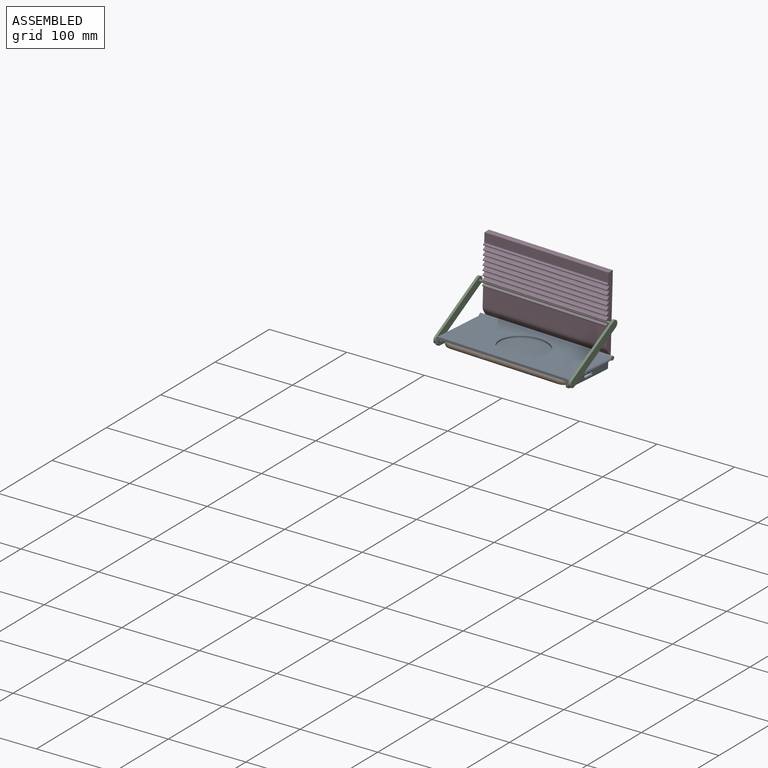
[diagram: assembled view]
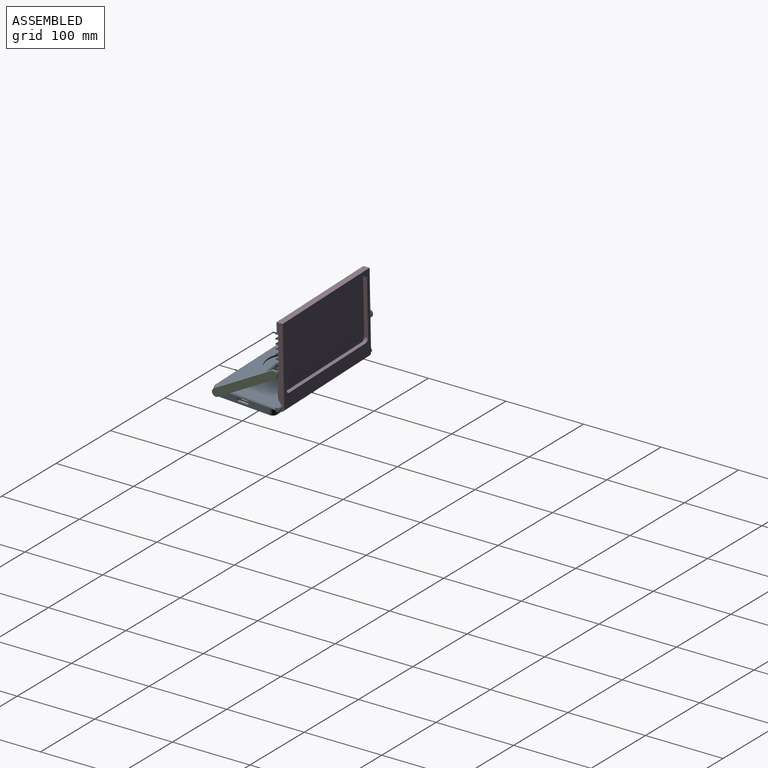
[diagram: assembled view, second angle]
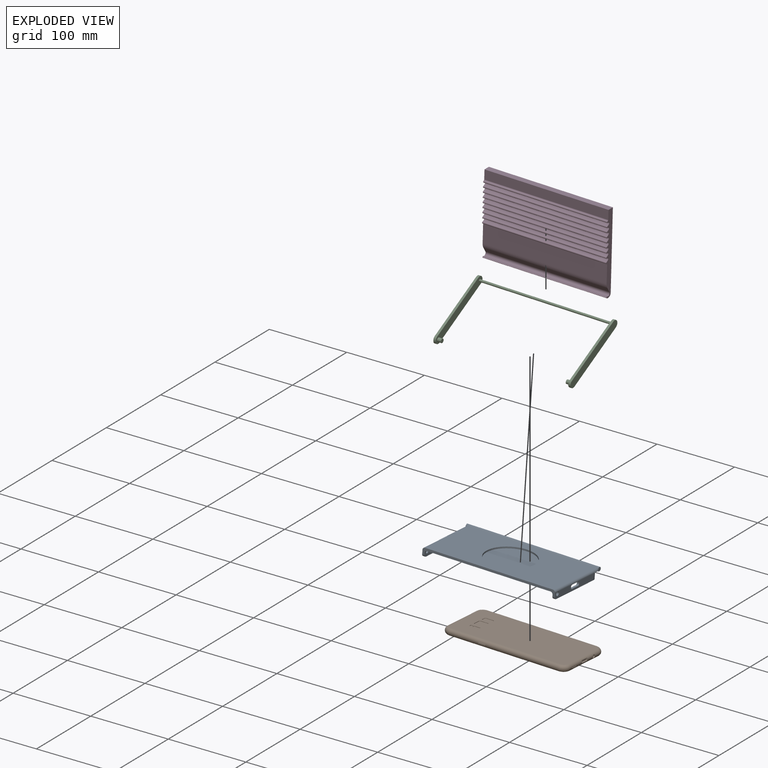
[diagram: exploded view]
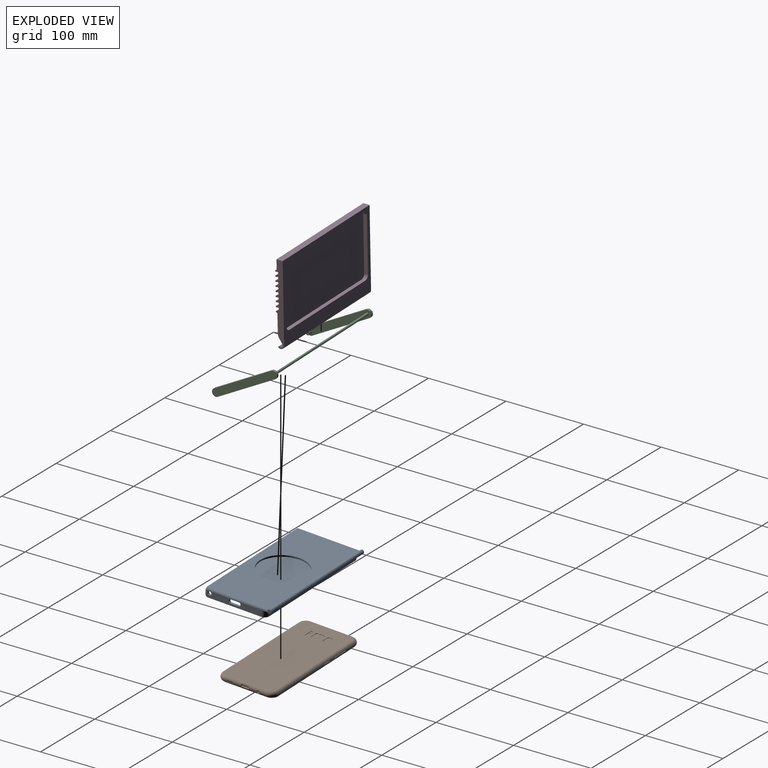
[diagram: exploded view, second angle]
ASSEMBLY  parts=4 mates=5
PART A: 41 faces, bbox 171x12x84.5 mm
  f0: plane 72x8mm, normal (1,0,0), area 482.9mm2, adj f7,f13,f20,f25,f26,f27,f28,f29
  f1: plane 72x8mm, normal (-1,0,0), area 554.4mm2, adj f7,f13,f19,f33,f37,f38
  f2: cylinder r=3mm len=67mm, axis (0,0,1), area 266mm2, adj f4,f6,f24,f28,f29,f30,f31,f32
  f3: cylinder r=3mm len=5mm, axis (0,0,1), area 15.7mm2, adj f6,f7,f15,f33
  f4: plane 72x5mm, normal (-1,0,0), area 315mm2, adj f2,f5,f7,f13,f18,f25,f26,f27
  f5: cylinder r=3mm len=5mm, axis (0,0,1), area 15.7mm2, adj f4,f6,f7,f34
  f6: plane 159x72mm, normal (0,-1,0), area 11448mm2, adj f2,f3,f5,f7,f21,f23
  f7: plane 171x8mm, normal (0,0,1), area 543mm2, adj f0,f1,f3,f4,f5,f6,f9,f15
  f8: plane 171x8mm, normal (0,-1,0), area 357.5mm2, adj f10,f12,f19,f20,f38,f40
  f9: plane 165x80mm, normal (0,1,0), area 10372.6mm2, adj f7,f10,f35,f38,f40
  f10: cylinder r=2.5mm len=171mm, axis (-1,0,0), area 2140.1mm2, adj f8,f9,f14,f16,f38,f40
  f11: plane 159x5mm, normal (0,0,1), area 795mm2, adj f13,f17,f18,f23
  f12: plane 159x8mm, normal (0,0,-1), area 1272mm2, adj f8,f13,f19,f20
  f13: plane 171x75mm, normal (0,-1,0), area 933.4mm2, adj f0,f1,f4,f11,f12,f15,f17,f18
  f14: plane 5x5mm, normal (1,0,0), area 19.6mm2, adj f10
  f15: plane 72x5mm, normal (1,0,0), area 350.7mm2, adj f3,f7,f13,f17,f21,f33,f37
  f16: plane 5x5mm, normal (-1,0,0), area 19.6mm2, adj f10
  f17: cylinder r=3mm len=5mm, axis (0,1,0), area 23.6mm2, adj f11,f13,f15,f22
  f18: cylinder r=3mm len=5mm, axis (0,1,0), area 23.6mm2, adj f4,f11,f13,f24
  f19: cylinder r=6mm len=8mm, axis (0,-1,0), area 75.4mm2, adj f1,f8,f12,f13
  f20: cylinder r=6mm len=8mm, axis (0,-1,0), area 75.4mm2, adj f0,f8,f12,f13
  f21: cylinder r=3mm len=67mm, axis (0,0,1), area 307.8mm2, adj f6,f15,f22,f33
  f22: sphere r=3mm, area 14.1mm2, adj f17,f21,f23
  f23: cylinder r=3mm len=159mm, axis (-1,0,0), area 749.3mm2, adj f6,f11,f22,f24
  f24: sphere r=3mm, area 14.1mm2, adj f2,f18,f23
  f25: cylinder r=2mm len=3mm, axis (1,0,0), area 9.4mm2, adj f0,f4,f26,f30
  f26: plane 11x3mm, normal (0,1,0), area 33mm2, adj f0,f4,f25,f27
  f27: cylinder r=2mm len=3mm, axis (1,0,0), area 9.4mm2, adj f0,f4,f26,f31
  f28: plane 11x4.34mm, normal (0,-1,0), area 47.8mm2, adj f0,f2,f29,f32
  f29: cylinder r=2mm len=4.34mm, axis (1,0,0), area 11.6mm2, adj f0,f2,f28,f30
  f30: plane 3.04x1mm, normal (0,0,-1), area 3mm2, adj f0,f2,f4,f25,f29
  f31: plane 3.04x1mm, normal (0,0,1), area 3mm2, adj f0,f2,f4,f27,f32
  f32: cylinder r=2mm len=4.34mm, axis (1,0,0), area 11.6mm2, adj f0,f2,f28,f31
  f33: cylinder r=2.5mm len=6mm, axis (1,0,0), area 56.6mm2, adj f1,f3,f15,f21
  f34: cylinder r=2.5mm len=6mm, axis (1,0,0), area 56.6mm2, adj f0,f2,f4,f5
  f35: cylinder r=30mm len=60mm, axis (0,1,0), area 377mm2, adj f9,f36
  f36: plane 60x60mm, normal (0,1,0), area 2827.4mm2, adj f35
  f37: cylinder r=3mm len=3mm, axis (-1,0,0), area 14.1mm2, adj f1,f7,f13,f15
  f38: cylinder r=3mm len=80mm, axis (0,0,-1), area 375.7mm2, adj f1,f7,f8,f9,f10
  f39: cylinder r=3mm len=3mm, axis (1,0,0), area 14.1mm2, adj f0,f4,f7,f13
  f40: cylinder r=3mm len=80mm, axis (0,0,-1), area 375.7mm2, adj f0,f7,f8,f9,f10
PART B: 134 faces, bbox 75.3x161.6x8 mm
  f0: plane 152x65.5mm, normal (0,0,-1), area 9913.4mm2, adj f1,f2,f4,f5,f6,f7,f8,f9
  f1: cylinder r=4mm len=53.5mm, axis (-1,0,0), area 617mm2, adj f0,f3,f6,f9,f73,f74,f75,f76
  f2: cylinder r=4mm len=140mm, axis (0,1,0), area 1745.2mm2, adj f0,f3,f8,f9,f46,f47,f48,f49
  f3: plane 152x65.5mm, normal (0,0,1), area 9671.4mm2, adj f1,f2,f4,f5,f6,f7,f8,f9
  f4: cylinder r=4mm len=140mm, axis (0,-1,0), area 1712.9mm2, adj f0,f3,f5,f6,f55,f56,f57,f58
  f5: torus R=6mm, axis (0,0,1), area 168.7mm2, adj f0,f3,f4,f7
  f6: torus R=6mm, axis (0,0,1), area 168.7mm2, adj f0,f1,f3,f4
  f7: cylinder r=4mm len=53.5mm, axis (1,0,0), area 672.3mm2, adj f0,f3,f5,f8
  f8: torus R=6mm, axis (0,0,1), area 168.7mm2, adj f0,f2,f3,f7
  f9: torus R=6mm, axis (0,0,1), area 168.7mm2, adj f0,f1,f2,f3
  f10: plane 7x0.5mm, normal (-1,0,0), area 3.5mm2, adj f3,f11,f17,f18
  f11: cylinder r=0.5mm len=0.5mm, axis (0,0,1), area 0.4mm2, adj f3,f10,f12,f18
  f12: plane 2x0.5mm, normal (0,-1,0), area 1mm2, adj f3,f11,f13,f18
  f13: cylinder r=0.5mm len=0.5mm, axis (0,0,1), area 0.4mm2, adj f3,f12,f14,f18
  f14: plane 7x0.5mm, normal (1,0,0), area 3.5mm2, adj f3,f13,f15,f18
  f15: cylinder r=0.5mm len=0.5mm, axis (0,0,1), area 0.4mm2, adj f3,f14,f16,f18
  f16: plane 2x0.5mm, normal (0,1,0), area 1mm2, adj f3,f15,f17,f18
  f17: cylinder r=0.5mm len=0.5mm, axis (0,0,1), area 0.4mm2, adj f3,f10,f16,f18
  f18: plane 8x3mm, normal (0,0,1), area 23.8mm2, adj f10,f11,f12,f13,f14,f15,f16,f17
  f19: plane 8x0.5mm, normal (-1,0,0), area 4mm2, adj f3,f20,f26,f27
  f20: cylinder r=2mm len=2mm, axis (0,0,1), area 1.6mm2, adj f3,f19,f21,f27
  f21: plane 8x0.5mm, normal (0,-1,0), area 4mm2, adj f3,f20,f22,f27
  f22: cylinder r=2mm len=2mm, axis (0,0,1), area 1.6mm2, adj f3,f21,f23,f27
  f23: plane 8x0.5mm, normal (1,0,0), area 4mm2, adj f3,f22,f24,f27
  f24: cylinder r=2mm len=2mm, axis (0,0,1), area 1.6mm2, adj f3,f23,f25,f27
  f25: plane 8x0.5mm, normal (0,1,0), area 4mm2, adj f3,f24,f26,f27
  f26: cylinder r=2mm len=2mm, axis (0,0,1), area 1.6mm2, adj f3,f19,f25,f27
  f27: plane 12x12mm, normal (0,0,1), area 140.6mm2, adj f19,f20,f21,f22,f23,f24,f25,f26
  f28: cylinder r=0.5mm len=0.5mm, axis (0,0,1), area 0.4mm2, adj f3,f29,f35,f36
  f29: plane 2x0.5mm, normal (-1,0,0), area 1mm2, adj f3,f28,f30,f36
  f30: cylinder r=0.5mm len=0.5mm, axis (0,0,1), area 0.4mm2, adj f3,f29,f31,f36
  f31: plane 2x0.5mm, normal (0,-1,0), area 1mm2, adj f3,f30,f32,f36
  f32: cylinder r=0.5mm len=0.5mm, axis (0,0,1), area 0.4mm2, adj f3,f31,f33,f36
  f33: plane 2x0.5mm, normal (1,0,0), area 1mm2, adj f3,f32,f34,f36
  f34: cylinder r=0.5mm len=0.5mm, axis (0,0,1), area 0.4mm2, adj f3,f33,f35,f36
  f35: plane 2x0.5mm, normal (0,1,0), area 1mm2, adj f3,f28,f34,f36
  f36: plane 3x3mm, normal (0,0,1), area 8.8mm2, adj f28,f29,f30,f31,f32,f33,f34,f35
  f37: cylinder r=2mm len=2mm, axis (0,0,1), area 1.6mm2, adj f3,f38,f44,f45
  f38: plane 3x0.5mm, normal (0,-1,0), area 1.5mm2, adj f3,f37,f39,f45
  f39: cylinder r=2mm len=2mm, axis (0,0,1), area 1.6mm2, adj f3,f38,f40,f45
  f40: plane 8x0.5mm, normal (1,0,0), area 4mm2, adj f3,f39,f41,f45
  f41: cylinder r=2mm len=2mm, axis (0,0,1), area 1.6mm2, adj f3,f40,f42,f45
  f42: plane 3x0.5mm, normal (0,1,0), area 1.5mm2, adj f3,f41,f43,f45
  f43: cylinder r=2mm len=2mm, axis (0,0,1), area 1.6mm2, adj f3,f42,f44,f45
  f44: plane 8x0.5mm, normal (-1,0,0), area 4mm2, adj f3,f37,f43,f45
  f45: plane 12x7mm, normal (0,0,1), area 80.6mm2, adj f37,f38,f39,f40,f41,f42,f43,f44
  f46: plane 1.01x0.5mm, normal (0,-1,0), area 0.5mm2, adj f2,f47,f53,f54
  f47: cylinder r=0.5mm len=1.07mm, axis (-1,0,0), area 0.8mm2, adj f2,f46,f48,f54
  f48: plane 8.5x1.07mm, normal (0,0,-1), area 9.1mm2, adj f2,f47,f49,f54
  f49: cylinder r=0.5mm len=1.07mm, axis (-1,0,0), area 0.8mm2, adj f2,f48,f50,f54
  f50: plane 1.01x0.5mm, normal (0,1,0), area 0.5mm2, adj f2,f49,f51,f54
  f51: cylinder r=0.5mm len=1.07mm, axis (-1,0,0), area 0.8mm2, adj f2,f50,f52,f54
  f52: plane 8.5x1.07mm, normal (0,0,1), area 9.1mm2, adj f2,f51,f53,f54
  f53: cylinder r=0.5mm len=1.07mm, axis (-1,0,0), area 0.8mm2, adj f2,f46,f52,f54
  f54: plane 9.5x1.5mm, normal (-1,0,0), area 14mm2, adj f46,f47,f48,f49,f50,f51,f52,f53
  f55: plane 9x0.57mm, normal (0,0,-1), area 5.1mm2, adj f4,f56,f62,f63
  f56: cylinder r=0.5mm len=0.57mm, axis (1,0,0), area 0.4mm2, adj f4,f55,f57,f63
  f57: plane 0.51x0.5mm, normal (0,1,0), area 0.3mm2, adj f4,f56,f58,f63
  f58: cylinder r=0.5mm len=0.57mm, axis (1,0,0), area 0.4mm2, adj f4,f57,f59,f63
  f59: plane 9x0.57mm, normal (0,0,1), area 5.1mm2, adj f4,f58,f60,f63
  f60: cylinder r=0.5mm len=0.57mm, axis (1,0,0), area 0.4mm2, adj f4,f59,f61,f63
  f61: plane 0.51x0.5mm, normal (0,-1,0), area 0.3mm2, adj f4,f60,f62,f63
  f62: cylinder r=0.5mm len=0.57mm, axis (1,0,0), area 0.4mm2, adj f4,f55,f61,f63
  f63: plane 10x1.5mm, normal (1,0,0), area 14.8mm2, adj f55,f56,f57,f58,f59,f60,f61,f62
  f64: plane 20x0.57mm, normal (0,0,-1), area 11.4mm2, adj f4,f65,f71,f72
  f65: cylinder r=0.5mm len=0.57mm, axis (1,0,0), area 0.4mm2, adj f4,f64,f66,f72
  f66: plane 0.51x0.5mm, normal (0,1,0), area 0.3mm2, adj f4,f65,f67,f72
  f67: cylinder r=0.5mm len=0.57mm, axis (1,0,0), area 0.4mm2, adj f4,f66,f68,f72
  f68: plane 20x0.57mm, normal (0,0,1), area 11.4mm2, adj f4,f67,f69,f72
  f69: cylinder r=0.5mm len=0.57mm, axis (1,0,0), area 0.4mm2, adj f4,f68,f70,f72
  f70: plane 0.51x0.5mm, normal (0,-1,0), area 0.3mm2, adj f4,f69,f71,f72
  f71: cylinder r=0.5mm len=0.57mm, axis (1,0,0), area 0.4mm2, adj f4,f64,f70,f72
  f72: plane 21x1.5mm, normal (1,0,0), area 31.3mm2, adj f64,f65,f66,f67,f68,f69,f70,f71
  f73: cylinder r=0.25mm len=1.93mm, axis (0,-1,0), area 0.7mm2, adj f1,f74,f80,f81
  f74: plane 1.87x0.5mm, normal (0,0,1), area 0.9mm2, adj f1,f73,f75,f81
  f75: cylinder r=0.25mm len=1.93mm, axis (0,-1,0), area 0.7mm2, adj f1,f74,f76,f81
  f76: plane 2x1.75mm, normal (-1,0,0), area 3.4mm2, adj f1,f75,f77,f81
  f77: cylinder r=0.25mm len=1.87mm, axis (0,-1,0), area 0.7mm2, adj f1,f76,f78,f81
  f78: plane 1.8x0.5mm, normal (0,0,-1), area 0.9mm2, adj f1,f77,f79,f81
  f79: cylinder r=0.25mm len=1.87mm, axis (0,-1,0), area 0.7mm2, adj f1,f78,f80,f81
  f80: plane 2x1.75mm, normal (1,0,0), area 3.4mm2, adj f1,f73,f79,f81
  f81: plane 2.25x1mm, normal (0,-1,0), area 2.2mm2, adj f73,f74,f75,f76,f77,f78,f79,f80
  f82: cylinder r=0.25mm len=1.93mm, axis (0,-1,0), area 0.7mm2, adj f1,f83,f89,f90
  f83: plane 1.87x0.5mm, normal (0,0,1), area 0.9mm2, adj f1,f82,f84,f90
  f84: cylinder r=0.25mm len=1.93mm, axis (0,-1,0), area 0.7mm2, adj f1,f83,f85,f90
  f85: plane 2x1.75mm, normal (-1,0,0), area 3.4mm2, adj f1,f84,f86,f90
  f86: cylinder r=0.25mm len=1.87mm, axis (0,-1,0), area 0.7mm2, adj f1,f85,f87,f90
  f87: plane 1.8x0.5mm, normal (0,0,-1), area 0.9mm2, adj f1,f86,f88,f90
  f88: cylinder r=0.25mm len=1.87mm, axis (0,-1,0), area 0.7mm2, adj f1,f87,f89,f90
  f89: plane 2x1.75mm, normal (1,0,0), area 3.4mm2, adj f1,f82,f88,f90
  f90: plane 2.25x1mm, normal (0,-1,0), area 2.2mm2, adj f82,f83,f84,f85,f86,f87,f88,f89
  f91: cylinder r=0.25mm len=1.93mm, axis (0,-1,0), area 0.7mm2, adj f1,f92,f98,f99
  f92: plane 1.87x0.5mm, normal (0,0,1), area 0.9mm2, adj f1,f91,f93,f99
  f93: cylinder r=0.25mm len=1.93mm, axis (0,-1,0), area 0.7mm2, adj f1,f92,f94,f99
  f94: plane 2x1.75mm, normal (-1,0,0), area 3.4mm2, adj f1,f93,f95,f99
  f95: cylinder r=0.25mm len=1.87mm, axis (0,-1,0), area 0.7mm2, adj f1,f94,f96,f99
  f96: plane 1.8x0.5mm, normal (0,0,-1), area 0.9mm2, adj f1,f95,f97,f99
  f97: cylinder r=0.25mm len=1.87mm, axis (0,-1,0), area 0.7mm2, adj f1,f96,f98,f99
  f98: plane 2x1.75mm, normal (1,0,0), area 3.4mm2, adj f1,f91,f97,f99
  f99: plane 2.25x1mm, normal (0,-1,0), area 2.2mm2, adj f91,f92,f93,f94,f95,f96,f97,f98
  f100: cylinder r=0.25mm len=1.93mm, axis (0,-1,0), area 0.7mm2, adj f1,f101,f107,f108
  f101: plane 1.87x0.5mm, normal (0,0,1), area 0.9mm2, adj f1,f100,f102,f108
  f102: cylinder r=0.25mm len=1.93mm, axis (0,-1,0), area 0.7mm2, adj f1,f101,f103,f108
  f103: plane 2x1.75mm, normal (-1,0,0), area 3.4mm2, adj f1,f102,f104,f108
  f104: cylinder r=0.25mm len=1.87mm, axis (0,-1,0), area 0.7mm2, adj f1,f103,f105,f108
  f105: plane 1.8x0.5mm, normal (0,0,-1), area 0.9mm2, adj f1,f104,f106,f108
  f106: cylinder r=0.25mm len=1.87mm, axis (0,-1,0), area 0.7mm2, adj f1,f105,f107,f108
  f107: plane 2x1.75mm, normal (1,0,0), area 3.4mm2, adj f1,f100,f106,f108
  f108: plane 2.25x1mm, normal (0,-1,0), area 2.2mm2, adj f100,f101,f102,f103,f104,f105,f106,f107
  f109: plane 1.87x0.5mm, normal (0,0,1), area 0.9mm2, adj f1,f110,f116,f117
  f110: cylinder r=0.25mm len=1.93mm, axis (0,-1,0), area 0.7mm2, adj f1,f109,f111,f117
  f111: plane 2x1.75mm, normal (-1,0,0), area 3.4mm2, adj f1,f110,f112,f117
  f112: cylinder r=0.25mm len=1.87mm, axis (0,-1,0), area 0.7mm2, adj f1,f111,f113,f117
  f113: plane 1.8x0.5mm, normal (0,0,-1), area 0.9mm2, adj f1,f112,f114,f117
  f114: cylinder r=0.25mm len=1.87mm, axis (0,-1,0), area 0.7mm2, adj f1,f113,f115,f117
  f115: plane 2x1.75mm, normal (1,0,0), area 3.4mm2, adj f1,f114,f116,f117
  f116: cylinder r=0.25mm len=1.93mm, axis (0,-1,0), area 0.7mm2, adj f1,f109,f115,f117
  f117: plane 2.25x1mm, normal (0,-1,0), area 2.2mm2, adj f109,f110,f111,f112,f113,f114,f115,f116
  f118: plane 2x2mm, normal (1,0,0), area 3.8mm2, adj f1,f119,f125,f126
  f119: cylinder r=0.5mm len=1.99mm, axis (0,-1,0), area 1.5mm2, adj f1,f118,f120,f126
  f120: plane 9x1.93mm, normal (0,0,1), area 17.4mm2, adj f1,f119,f121,f126
  f121: cylinder r=0.5mm len=1.99mm, axis (0,-1,0), area 1.5mm2, adj f1,f120,f122,f126
  f122: plane 2x2mm, normal (-1,0,0), area 3.8mm2, adj f1,f121,f123,f126
  f123: cylinder r=0.5mm len=1.6mm, axis (0,-1,0), area 1.1mm2, adj f1,f122,f124,f126
  f124: plane 9x1.31mm, normal (0,0,-1), area 11.8mm2, adj f1,f123,f125,f126
  f125: cylinder r=0.5mm len=1.6mm, axis (0,-1,0), area 1.1mm2, adj f1,f118,f124,f126
  f126: plane 10x3mm, normal (0,-1,0), area 29.8mm2, adj f118,f119,f120,f121,f122,f123,f124,f125
  f127: cylinder r=2mm len=4mm, axis (0,-1,0), area 21.8mm2, adj f1,f128
  f128: plane 4x4mm, normal (0,-1,0), area 12.6mm2, adj f127
  f129: plane 7.98x1mm, normal (0,-1,0), area 8mm2, adj f0,f130,f132,f133
  f130: plane 1.47x1mm, normal (-1,0,0), area 1.5mm2, adj f0,f129,f131,f133
  f131: plane 7.98x1mm, normal (0,1,0), area 8mm2, adj f0,f130,f132,f133
  f132: plane 1.47x1mm, normal (1,0,0), area 1.5mm2, adj f0,f129,f131,f133
  f133: plane 7.98x1.47mm, normal (0,0,-1), area 11.7mm2, adj f129,f130,f131,f132
PART C: 17 faces, bbox 95x177x10 mm
  f0: cylinder r=2.5mm len=5mm, axis (0,1,0), area 78.5mm2, adj f1,f7
  f1: plane 5x5mm, normal (0,-1,0), area 19.6mm2, adj f0
  f2: plane 85x3mm, normal (0,0,-1), area 255mm2, adj f3,f5,f6,f7
  f3: cylinder r=5mm len=10mm, axis (0,-1,0), area 47.1mm2, adj f2,f4,f6,f7
  f4: plane 85x3mm, normal (0,0,1), area 255mm2, adj f3,f5,f6,f7
  f5: cylinder r=5mm len=10mm, axis (0,-1,0), area 47.1mm2, adj f2,f4,f6,f7
  f6: plane 95x10mm, normal (0,1,0), area 928.5mm2, adj f2,f3,f4,f5
  f7: plane 95x10mm, normal (0,-1,0), area 901.8mm2, adj f0,f2,f3,f4,f5,f8
  f8: cylinder r=1.5mm len=171mm, axis (0,1,0), area 1611.6mm2, adj f7,f16
  f9: cylinder r=2.5mm len=5mm, axis (0,-1,0), area 78.5mm2, adj f10,f16
  f10: plane 5x5mm, normal (0,1,0), area 19.6mm2, adj f9
  f11: plane 85x3mm, normal (0,0,-1), area 255mm2, adj f12,f14,f15,f16
  f12: cylinder r=5mm len=10mm, axis (0,1,0), area 47.1mm2, adj f11,f13,f15,f16
  f13: plane 85x3mm, normal (0,0,1), area 255mm2, adj f12,f14,f15,f16
  f14: cylinder r=5mm len=10mm, axis (0,1,0), area 47.1mm2, adj f11,f13,f15,f16
  f15: plane 95x10mm, normal (0,-1,0), area 928.5mm2, adj f11,f12,f13,f14
  f16: plane 95x10mm, normal (0,1,0), area 901.8mm2, adj f8,f9,f11,f12,f13,f14
PART D: 56 faces, bbox 104.8x10x160 mm
  f0: plane 160x100mm, normal (0,-1,0), area 4021.5mm2, adj f43,f44,f45,f46,f47,f48,f49,f50
  f1: plane 160x11.76mm, normal (0,1,0), area 1881.2mm2, adj f2,f44,f45,f46
  f2: cylinder r=1mm len=160mm, axis (0,0,-1), area 197mm2, adj f1,f3,f45,f46
  f3: cylinder r=3.5mm len=160mm, axis (0,0,-1), area 165.7mm2, adj f2,f4,f45,f46
  f4: cylinder r=1mm len=160mm, axis (0,0,-1), area 502.7mm2, adj f3,f5,f45,f46
  f5: cylinder r=1.5mm len=160mm, axis (0,0,-1), area 684mm2, adj f4,f6,f45,f46
  f6: cylinder r=5.46mm len=160mm, axis (0,0,-1), area 469.7mm2, adj f5,f7,f45,f46
  f7: cylinder r=3.5mm len=160mm, axis (0,0,-1), area 178mm2, adj f6,f8,f45,f46
  f8: cylinder r=1mm len=160mm, axis (0,0,-1), area 502.7mm2, adj f7,f9,f45,f46
  f9: cylinder r=1.5mm len=160mm, axis (0,0,-1), area 684mm2, adj f8,f10,f45,f46
  f10: cylinder r=5.46mm len=160mm, axis (0,0,-1), area 469.7mm2, adj f9,f11,f45,f46
  f11: cylinder r=3.5mm len=160mm, axis (0,0,-1), area 178mm2, adj f10,f12,f45,f46
  f12: cylinder r=1mm len=160mm, axis (0,0,-1), area 502.7mm2, adj f11,f13,f45,f46
  f13: cylinder r=1.5mm len=160mm, axis (0,0,-1), area 684mm2, adj f12,f14,f45,f46
  f14: cylinder r=5.46mm len=160mm, axis (0,0,-1), area 469.7mm2, adj f13,f15,f45,f46
  f15: cylinder r=3.5mm len=160mm, axis (0,0,-1), area 178mm2, adj f14,f16,f45,f46
  f16: cylinder r=1mm len=160mm, axis (0,0,-1), area 502.7mm2, adj f15,f17,f45,f46
  f17: cylinder r=1.5mm len=160mm, axis (0,0,-1), area 684mm2, adj f16,f18,f45,f46
  f18: cylinder r=5.46mm len=160mm, axis (0,0,-1), area 469.7mm2, adj f17,f19,f45,f46
  f19: cylinder r=3.5mm len=160mm, axis (0,0,-1), area 178mm2, adj f18,f20,f45,f46
  f20: cylinder r=1mm len=160mm, axis (0,0,-1), area 502.7mm2, adj f19,f21,f45,f46
  f21: cylinder r=1.5mm len=160mm, axis (0,0,-1), area 684mm2, adj f20,f22,f45,f46
  f22: cylinder r=5.46mm len=160mm, axis (0,0,-1), area 469.7mm2, adj f21,f23,f45,f46
  f23: cylinder r=3.5mm len=160mm, axis (0,0,-1), area 178mm2, adj f22,f24,f45,f46
  f24: cylinder r=1mm len=160mm, axis (0,0,-1), area 502.7mm2, adj f23,f25,f45,f46
  f25: cylinder r=1.5mm len=160mm, axis (0,0,-1), area 684mm2, adj f24,f26,f45,f46
  f26: cylinder r=5.46mm len=160mm, axis (0,0,-1), area 469.7mm2, adj f25,f27,f45,f46
  f27: cylinder r=3.5mm len=160mm, axis (0,0,-1), area 178mm2, adj f26,f28,f45,f46
  f28: cylinder r=1mm len=160mm, axis (0,0,-1), area 502.7mm2, adj f27,f29,f45,f46
  f29: cylinder r=1.5mm len=160mm, axis (0,0,-1), area 684mm2, adj f28,f30,f45,f46
  f30: cylinder r=5.46mm len=160mm, axis (0,0,-1), area 469.7mm2, adj f29,f31,f45,f46
  f31: cylinder r=6.39mm len=160mm, axis (0,0,-1), area 177.5mm2, adj f30,f32,f45,f46
  f32: cylinder r=1mm len=160mm, axis (0,0,-1), area 502.7mm2, adj f31,f33,f45,f46
  f33: cylinder r=1.5mm len=160mm, axis (0,0,-1), area 684mm2, adj f32,f34,f45,f46
  f34: cylinder r=5.46mm len=160mm, axis (0,0,-1), area 469.7mm2, adj f33,f35,f45,f46
  f35: cylinder r=6.39mm len=160mm, axis (0,0,-1), area 177.5mm2, adj f34,f36,f45,f46
  f36: cylinder r=1mm len=160mm, axis (0,0,-1), area 399.7mm2, adj f35,f37,f45,f46
  f37: cylinder r=1mm len=160mm, axis (0,0,-1), area 250.1mm2, adj f36,f38,f45,f46
  f38: plane 160x23.13mm, normal (0,1,0), area 3701.3mm2, adj f37,f39,f45,f46
  f39: cylinder r=10mm len=160mm, axis (0,0,-1), area 938.5mm2, adj f38,f40,f45,f46
  f40: plane 160x5.82mm, normal (-0.55,0.83,0), area 1118.3mm2, adj f39,f41,f45,f46
  f41: cylinder r=2.75mm len=160mm, axis (0,0,-1), area 1289.1mm2, adj f40,f42,f45,f46
  f42: plane 160x1.41mm, normal (0.71,0.71,0), area 320mm2, adj f41,f43,f45,f46
  f43: cylinder r=4.75mm len=160mm, axis (0,0,-1), area 1785mm2, adj f0,f42,f45,f46
  f44: plane 160x8mm, normal (1,0,0), area 1280mm2, adj f0,f1,f45,f46
  f45: plane 104.75x9.98mm, normal (0,0,1), area 773.8mm2, adj f0,f1,f2,f3,f4,f5,f6,f7
  f46: plane 104.75x9.98mm, normal (0,0,-1), area 773.8mm2, adj f0,f1,f2,f3,f4,f5,f6,f7
  f47: plane 70x5mm, normal (0,0,-1), area 350mm2, adj f0,f51,f52,f55
  f48: plane 140x5mm, normal (1,0,0), area 700mm2, adj f0,f51,f52,f53
  f49: plane 70x5mm, normal (0,0,1), area 350mm2, adj f0,f51,f53,f54
  f50: plane 140x5mm, normal (-1,0,0), area 700mm2, adj f0,f51,f54,f55
  f51: plane 150x80mm, normal (0,-1,0), area 11978.5mm2, adj f47,f48,f49,f50,f52,f53,f54,f55
  f52: cylinder r=5mm len=5mm, axis (0,-1,0), area 39.3mm2, adj f0,f47,f48,f51
  f53: cylinder r=5mm len=5mm, axis (0,1,0), area 39.3mm2, adj f0,f48,f49,f51
  f54: cylinder r=5mm len=5mm, axis (0,-1,0), area 39.3mm2, adj f0,f49,f50,f51
  f55: cylinder r=5mm len=5mm, axis (0,1,0), area 39.3mm2, adj f0,f47,f50,f51
PLACE A rot(axis=(1,0.01,-0.01),86.5deg) t=(-20.66,-1.24,9.28)mm
PLACE B rot(axis=(-0.02,0.04,1),90.1deg) t=(-19.92,16.79,1.12)mm
PLACE C rot(axis=(-0.69,0.7,0.19),160.9deg) t=(-106.22,-36.52,8.33)mm
PLACE D rot(axis=(0.72,0,0.7),180deg) t=(-101.6,-34.86,-5.31)mm fixed
MATE revolute D.f41 <-> A.f10  axis (-1,0,0.03) through (-101.24,40.58,7.4)mm
MATE planar C.f0 <-> A.f33  axis (-1,0,0.03) through (64.71,-36.52,3.59)mm
MATE planar A.f8 <-> B.f3  axis (-0.03,-0.06,-1) through (-20.81,37.39,3.87)mm
MATE cylindrical C.f0 <-> A.f33  axis (1,0,-0.03) through (59.72,-36.52,3.73)mm
MATE planar B.f72 <-> A.f11  axis (0,1,-0.06) through (-62.43,33.25,1.27)mm
